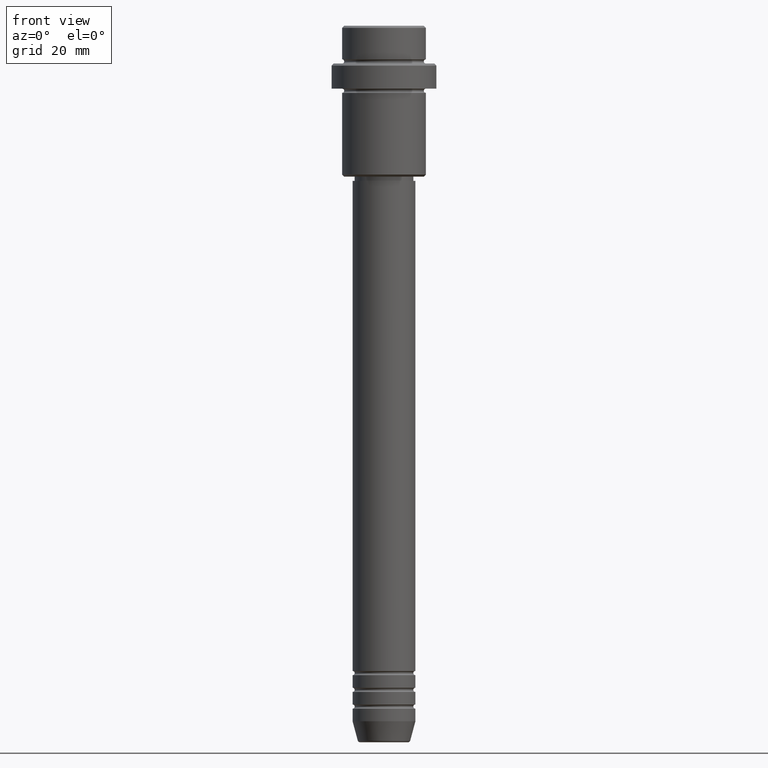
[diagram: clean part render]
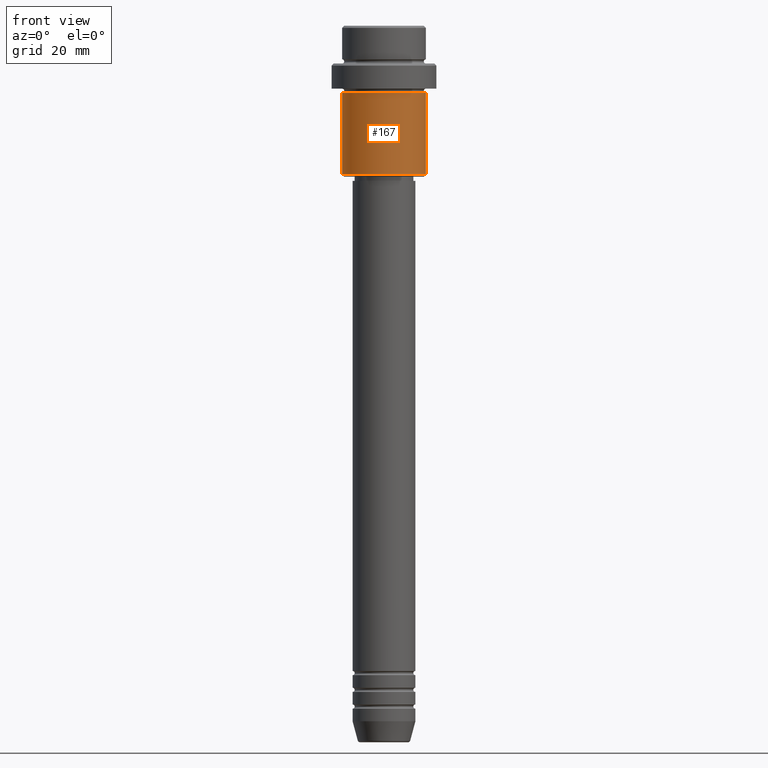
[diagram: same view with one face highlighted and labeled with its STEP entity id]
A machine part, front view. The second image highlights one B-rep face of the part: STEP entity #167.
In plain terms, the highlighted cylindrical surface (partial cylindrical patch) has radius 10 mm, axis along (-0, -0, 1).
Its self-contained STEP definition (entity closure, byte-faithful):
#3 = VERTEX_POINT ( 'NONE', #1199 ) ;
#56 = CARTESIAN_POINT ( 'NONE',  ( 10.00000000000000000, 0.000000000000000000, 0.000000000000000000 ) ) ;
#83 = AXIS2_PLACEMENT_3D ( 'NONE', #586, #911, #1345 ) ;
#89 = EDGE_CURVE ( 'NONE', #109, #576, #1352, .T. ) ;
#109 = VERTEX_POINT ( 'NONE', #251 ) ;
#153 = LINE ( 'NONE', #695, #374 ) ;
#167 = ADVANCED_FACE ( 'NONE', ( #1333 ), #343, .T. ) ;
#251 = CARTESIAN_POINT ( 'NONE',  ( -10.00000000000000000, 1.224646799147353256E-15, -35.49999999999997158 ) ) ;
#343 = CYLINDRICAL_SURFACE ( 'NONE', #83, 10.00000000000000000 ) ;
#374 = VECTOR ( 'NONE', #1226, 1000.000000000000000 ) ;
#403 = ORIENTED_EDGE ( 'NONE', *, *, #641, .T. ) ;
#410 = LINE ( 'NONE', #56, #428 ) ;
#428 = VECTOR ( 'NONE', #1271, 1000.000000000000000 ) ;
#468 = VERTEX_POINT ( 'NONE', #974 ) ;
#485 = EDGE_CURVE ( 'NONE', #109, #3, #153, .T. ) ;
#540 = DIRECTION ( 'NONE',  ( -0.000000000000000000, -0.000000000000000000, 1.000000000000000000 ) ) ;
#558 = CARTESIAN_POINT ( 'NONE',  ( 0.000000000000000000, 0.000000000000000000, -16.00000000000000000 ) ) ;
#576 = VERTEX_POINT ( 'NONE', #1116 ) ;
#586 = CARTESIAN_POINT ( 'NONE',  ( 0.000000000000000000, 0.000000000000000000, 0.000000000000000000 ) ) ;
#641 = EDGE_CURVE ( 'NONE', #576, #468, #410, .T. ) ;
#695 = CARTESIAN_POINT ( 'NONE',  ( -10.00000000000000000, 1.224646799147353256E-15, 0.000000000000000000 ) ) ;
#816 = DIRECTION ( 'NONE',  ( -0.000000000000000000, -0.000000000000000000, 1.000000000000000000 ) ) ;
#840 = ORIENTED_EDGE ( 'NONE', *, *, #89, .T. ) ;
#871 = AXIS2_PLACEMENT_3D ( 'NONE', #558, #540, #993 ) ;
#911 = DIRECTION ( 'NONE',  ( -0.000000000000000000, -0.000000000000000000, 1.000000000000000000 ) ) ;
#917 = EDGE_CURVE ( 'NONE', #3, #468, #989, .T. ) ;
#918 = AXIS2_PLACEMENT_3D ( 'NONE', #1256, #816, #1246 ) ;
#970 = EDGE_LOOP ( 'NONE', ( #1192, #840, #403, #1183 ) ) ;
#974 = CARTESIAN_POINT ( 'NONE',  ( 10.00000000000000000, 0.000000000000000000, -16.00000000000000000 ) ) ;
#989 = CIRCLE ( 'NONE', #871, 10.00000000000000000 ) ;
#993 = DIRECTION ( 'NONE',  ( 1.000000000000000000, 0.000000000000000000, 0.000000000000000000 ) ) ;
#1116 = CARTESIAN_POINT ( 'NONE',  ( 10.00000000000000000, 0.000000000000000000, -35.49999999999997158 ) ) ;
#1183 = ORIENTED_EDGE ( 'NONE', *, *, #917, .F. ) ;
#1192 = ORIENTED_EDGE ( 'NONE', *, *, #485, .F. ) ;
#1199 = CARTESIAN_POINT ( 'NONE',  ( -10.00000000000000000, 1.224646799147353256E-15, -16.00000000000000000 ) ) ;
#1226 = DIRECTION ( 'NONE',  ( -0.000000000000000000, -0.000000000000000000, 1.000000000000000000 ) ) ;
#1246 = DIRECTION ( 'NONE',  ( -1.000000000000000000, 0.000000000000000000, 0.000000000000000000 ) ) ;
#1256 = CARTESIAN_POINT ( 'NONE',  ( 0.000000000000000000, 0.000000000000000000, -35.49999999999997158 ) ) ;
#1271 = DIRECTION ( 'NONE',  ( -0.000000000000000000, -0.000000000000000000, 1.000000000000000000 ) ) ;
#1333 = FACE_OUTER_BOUND ( 'NONE', #970, .T. ) ;
#1345 = DIRECTION ( 'NONE',  ( 1.000000000000000000, 0.000000000000000000, 0.000000000000000000 ) ) ;
#1352 = CIRCLE ( 'NONE', #918, 10.00000000000000000 ) ;